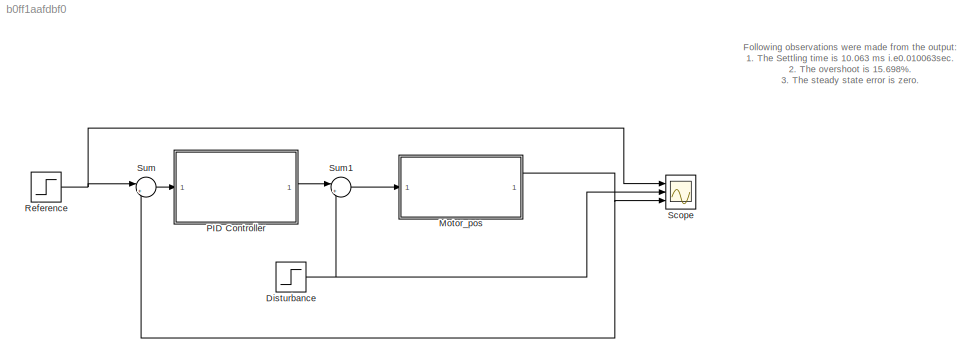
MODEL slx_b0ff1aafdbf0
KIND model
CONFIG AbsTol = auto
CONFIG EnableMultiTasking = off
CONFIG FixedStep = auto
CONFIG MaxStep = auto
CONFIG MinStep = auto
CONFIG RelTol = 1e-3
CONFIG SampleTimeConstraint = Unconstrained
CONFIG SolverName = ode45
CONFIG StartTime = 0.0
CONFIG StopTime = 0.5
BLOCK [Step] Disturbance
  SampleTime = 0
  Time = 0.03
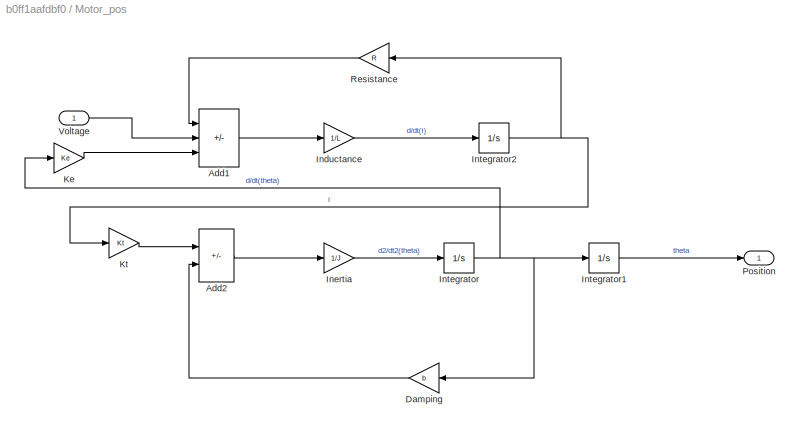
BLOCK [SubSystem] Motor_pos
  Ports = [1, 1]
  RequestExecContextInheritance = off
BLOCK [Sum] Motor_pos/Add1
  IconShape = rectangular
  Inputs = -+-
  Ports = [3, 1]
BLOCK [Sum] Motor_pos/Add2
  IconShape = rectangular
  Inputs = +-
  Ports = [2, 1]
BLOCK [Gain] Motor_pos/Damping
  Gain = b
  NameLocation = top
BLOCK [Gain] Motor_pos/Inductance
  Gain = 1/L
BLOCK [Gain] Motor_pos/Inertia
  Gain = 1/J
BLOCK [Integrator] Motor_pos/Integrator
  Ports = [1, 1]
BLOCK [Integrator] Motor_pos/Integrator1
  Ports = [1, 1]
BLOCK [Integrator] Motor_pos/Integrator2
  Ports = [1, 1]
BLOCK [Gain] Motor_pos/Ke
  Gain = Ke
BLOCK [Gain] Motor_pos/Kt
  Gain = Kt
BLOCK [Outport] Motor_pos/Position
  OutDataTypeStr = double
  PortDimensions = 1
  SampleTime = 0
  SamplingMode = Sample based
  SignalType = real
BLOCK [Gain] Motor_pos/Resistance
  Gain = R
  NameLocation = top
BLOCK [Inport] Motor_pos/Voltage
  OutDataTypeStr = double
  PortDimensions = 1
  SampleTime = 0
  SamplingMode = Sample based
  SignalType = real
BLOCK [ModelReference] PID Controller
  ModelNameDialog = PID_Controller_ref
  ModelReferenceVersion = 1.8
  Ports = [1, 1]
BLOCK [Step] Reference
  SampleTime = 0
  Time = 0
BLOCK [Scope] Scope
  Floating = off
  NumInputPorts = 3
  Ports = [3]
  ScopeSpecificationString = Simulink.scopes.TimeScopeBlockCfg('CurrentConfiguration', extmgr.ConfigurationSet(extmgr.Configuration('Core','General UI',true),extmgr.Configuration('Core','Source UI',true),extmgr.Configuration('Sources','WiredSimulink',true),extmgr.Configuration('Visuals','Time Domain',true,'SerializedDisplays',{struct('MinYLimReal','-0.14522','MaxYLimReal','1.30697','YLabelReal','','MinYLimMag','0.00000','MaxY...<+1792ch>
BLOCK [Sum] Sum
  Inputs = |+-
  Ports = [2, 1]
BLOCK [Sum] Sum1
  Inputs = |++
  Ports = [2, 1]
ANNOTATION (root): Following observations were made from the output: 1. The Settling time is 10.063 ms i.e0.010063sec. 2. The overshoot is 15.698%. 3. The steady state error is zero.
NET Disturbance:1 -> Scope:2, Sum1:2
LINE Motor_pos/Add1:1 -> Motor_pos/Inductance:1
LINE Motor_pos/Add2:1 -> Motor_pos/Inertia:1
LINE Motor_pos/Damping:1 -> Motor_pos/Add2:2
LINE Motor_pos/Inductance:1 -> Motor_pos/Integrator2:1
LINE Motor_pos/Inertia:1 -> Motor_pos/Integrator:1
LINE Motor_pos/Integrator1:1 -> Motor_pos/Position:1
NET Motor_pos/Integrator2:1 -> Motor_pos/Kt:1, Motor_pos/Resistance:1
NET Motor_pos/Integrator:1 -> Motor_pos/Damping:1, Motor_pos/Integrator1:1, Motor_pos/Ke:1
LINE Motor_pos/Ke:1 -> Motor_pos/Add1:3
LINE Motor_pos/Kt:1 -> Motor_pos/Add2:1
LINE Motor_pos/Resistance:1 -> Motor_pos/Add1:1
LINE Motor_pos/Voltage:1 -> Motor_pos/Add1:2
NET Motor_pos:1 -> Scope:3, Sum:2
LINE PID Controller:1 -> Sum1:1
NET Reference:1 -> Scope:1, Sum:1
LINE Sum1:1 -> Motor_pos:1
LINE Sum:1 -> PID Controller:1
note: NET lines group one-source signal fan-out (src -> all destinations, sorted); 1:1 wires keep LINE
